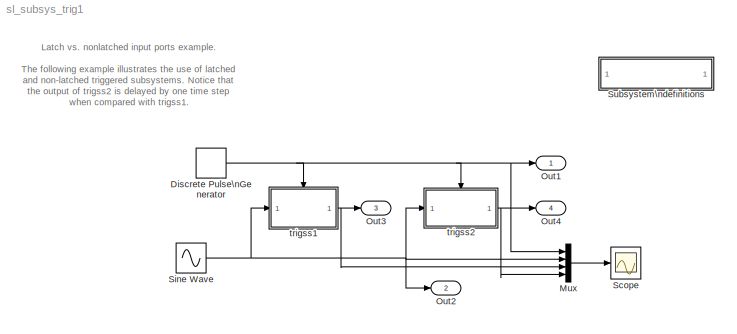
MODEL sl_subsys_trig1
KIND model
BLOCK [SubSystem]  Subsystem\ndefinitions
  MaskDisplay = disp('Subsystem\\ndefinitions')\n\n
  MaskIconFrame = on
  MaskIconOpaque = on
  MaskIconRotate = none
  MaskIconUnits = autoscale
  MinAlgLoopOccurrences = off
  OpenFcn = helpview([matlabroot,'/toolbox/simulink/simdemos/sl_subsys_definitions.html']);
  Ports = []
  PropExecContextAcrossSSBoundary = on
  RTWSystemCode = Auto
  TreatAsAtomicUnit = off
BLOCK [DiscretePulseGenerator] Discrete Pulse\nGenerator
  Ports = [0, 1]
BLOCK [Mux] Mux
  DisplayOption = bar
  Ports = [4, 1]
BLOCK [Outport] Out1
  IconDisplay = Port number
BLOCK [Outport] Out2
  IconDisplay = Port number
  Port = 2
BLOCK [Outport] Out3
  IconDisplay = Port number
  Port = 3
BLOCK [Outport] Out4
  IconDisplay = Port number
  Port = 4
BLOCK [Scope] Scope
  DataFormat = StructureWithTime
  NumInputPorts = 1
  Ports = [1]
BLOCK [Sin] Sine Wave
  Amplitude = 2
  Ports = [0, 1]
  SampleTime = .25
  Samples = 20
  SineType = Sample based
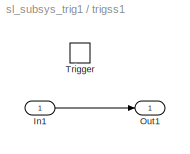
BLOCK [SubSystem] trigss1
  MinAlgLoopOccurrences = off
  Ports = [1, 1, 0, 1]
  PropExecContextAcrossSSBoundary = on
  RTWSystemCode = Auto
  TreatAsAtomicUnit = on
BLOCK [Inport] trigss1/In1
  IconDisplay = Port number
  LatchInput = off
  Port = 1
BLOCK [Outport] trigss1/Out1
  IconDisplay = Port number
BLOCK [TriggerPort] trigss1/Trigger
  Ports = []
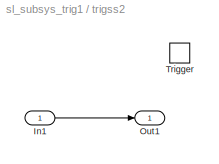
BLOCK [SubSystem] trigss2
  MinAlgLoopOccurrences = off
  Ports = [1, 1, 0, 1]
  PropExecContextAcrossSSBoundary = on
  RTWSystemCode = Auto
  TreatAsAtomicUnit = on
BLOCK [Inport] trigss2/In1
  IconDisplay = Port number
  LatchInput = on
  Port = 1
BLOCK [Outport] trigss2/Out1
  IconDisplay = Port number
BLOCK [TriggerPort] trigss2/Trigger
  Ports = []
ANNOTATION (root): Latch vs. nonlatched input ports example.\n\nThe following example illustrates the use of latched \nand non-latched triggered subsystems. Notice that\nthe output of trigss2 is delayed by one time step\nwhen compared with trigss1.
NET Discrete Pulse\nGenerator:1 -> Mux:1, Out1:1, trigss1:trigger, trigss2:trigger
LINE Mux:1 -> Scope:1
NET Sine Wave:1 -> Mux:2, Out2:1, trigss1:1, trigss2:1
LINE trigss1/In1:1 -> trigss1/Out1:1
NET trigss1:1 -> Mux:3, Out3:1
LINE trigss2/In1:1 -> trigss2/Out1:1
NET trigss2:1 -> Mux:4, Out4:1
note: NET lines group one-source signal fan-out (src -> all destinations, sorted); 1:1 wires keep LINE
